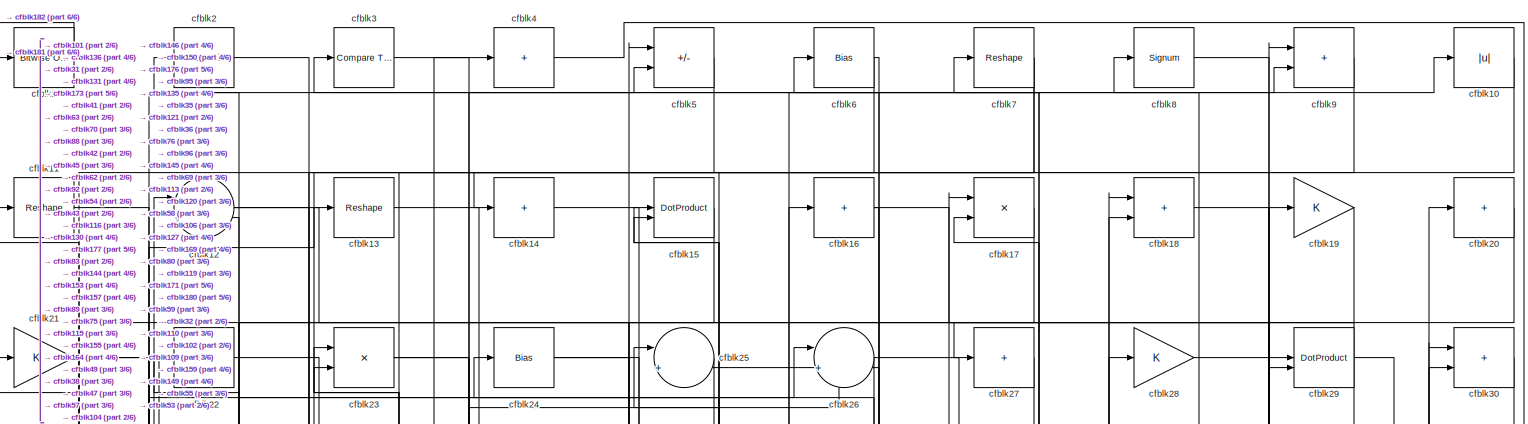
[diagram: root canvas - part 1/6, full width, top band]
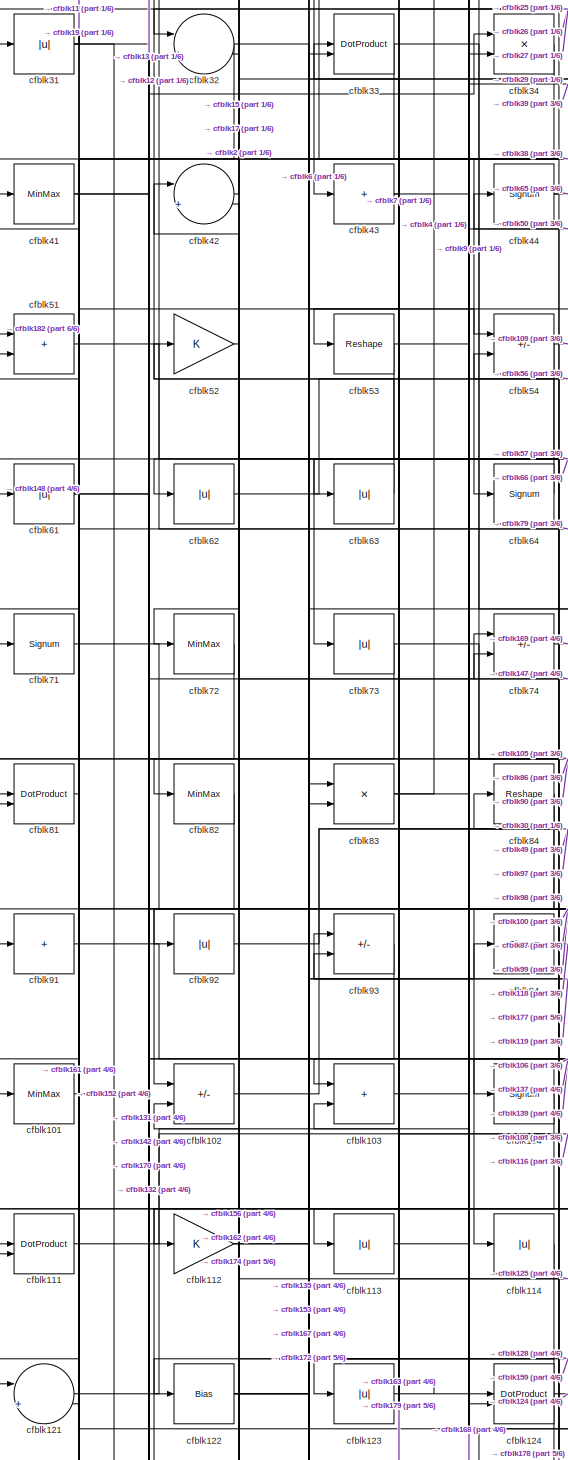
[diagram: root canvas - part 2/6, middle left region]
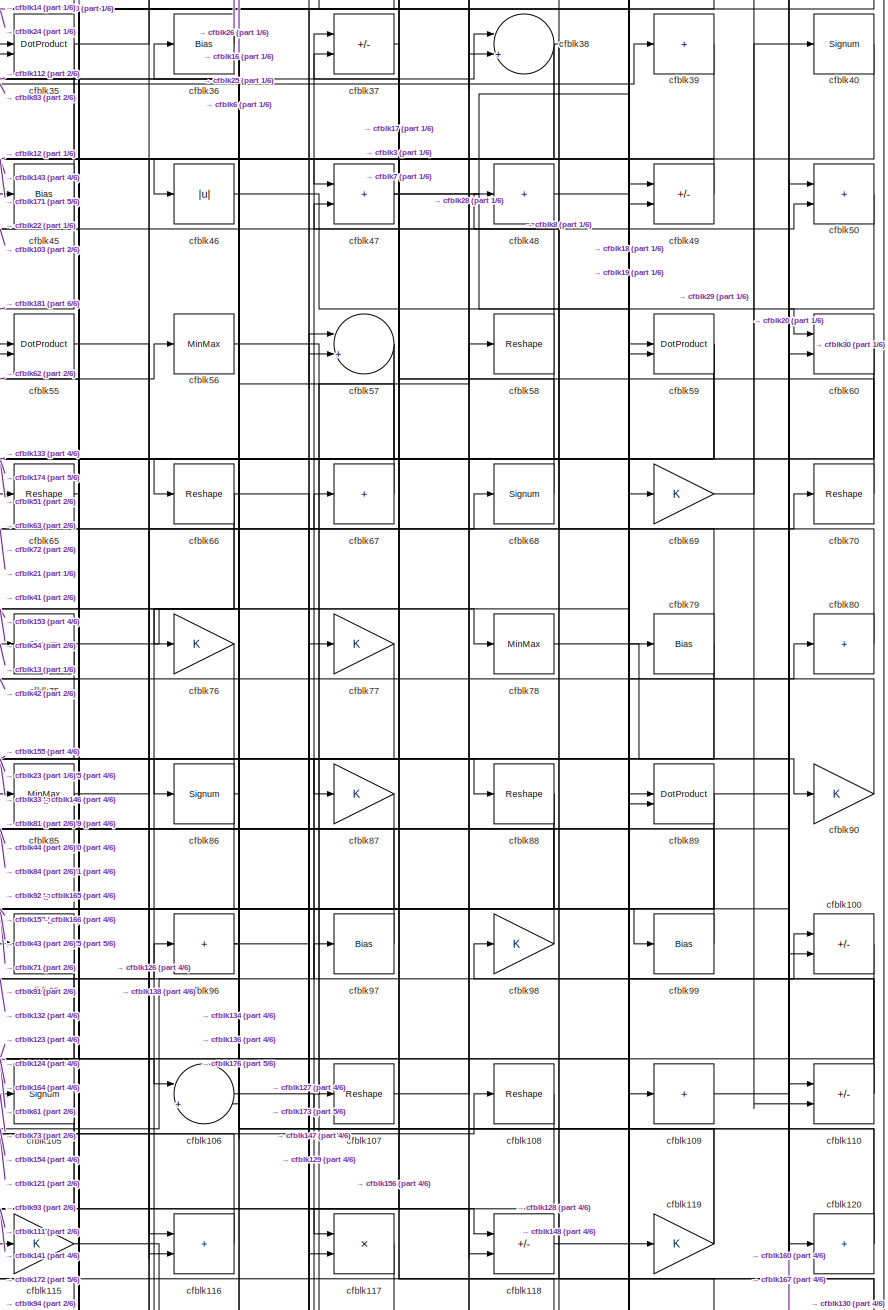
[diagram: root canvas - part 3/6, middle right region]
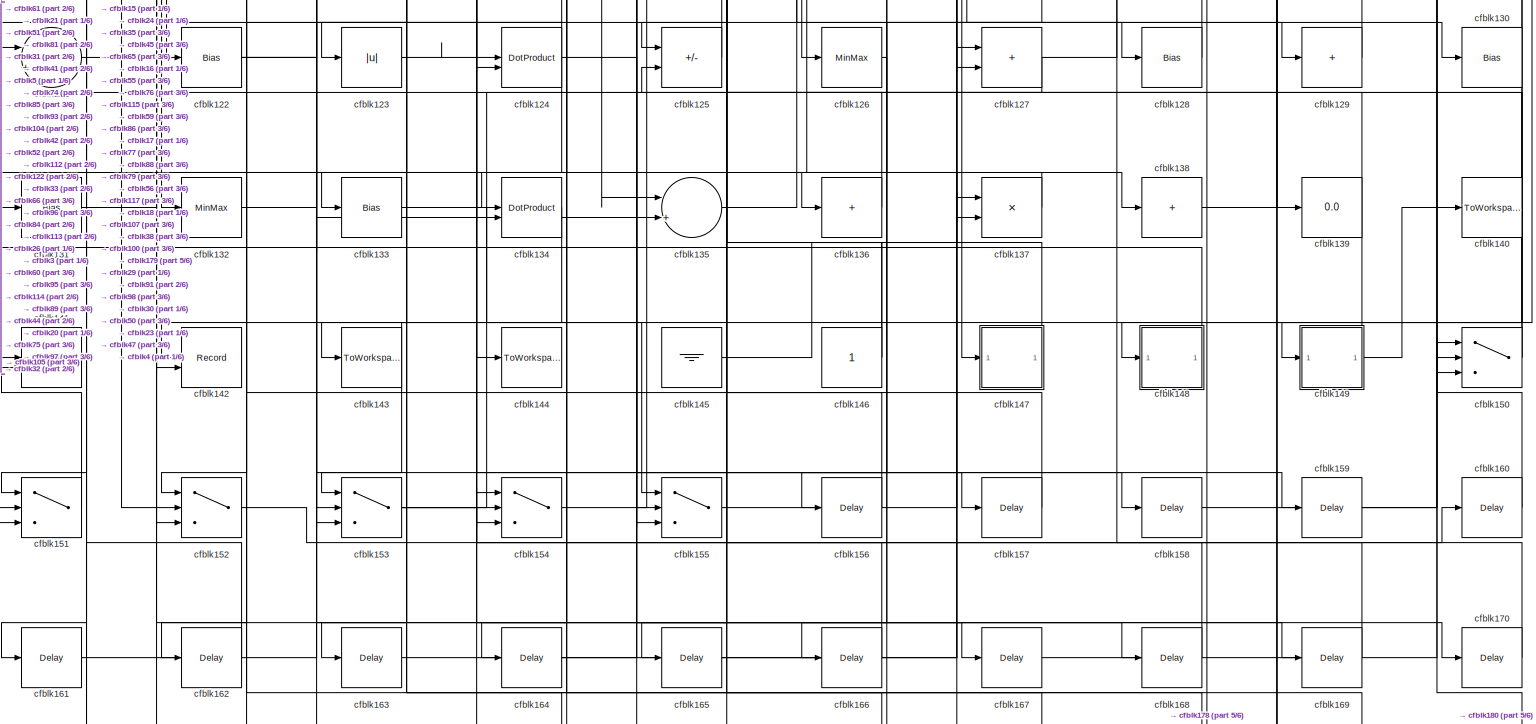
[diagram: root canvas - part 4/6, full width, bottom band]
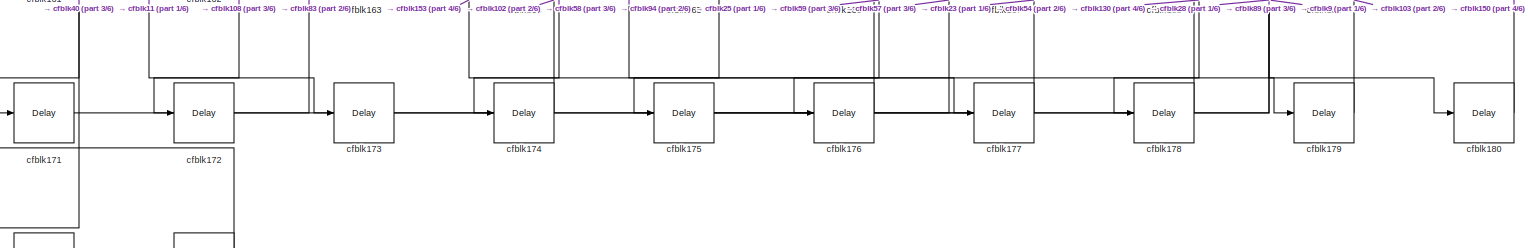
[diagram: root canvas - part 5/6, full width, bottom band]
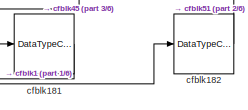
[diagram: root canvas - part 6/6, bottom left region]
MODEL slx_ebef8ea90718
KIND model
CONFIG AbsTol = auto
CONFIG EnableMultiTasking = off
CONFIG FixedStep = auto
CONFIG MaxStep = auto
CONFIG MinStep = auto
CONFIG RelTol = 1e-3
CONFIG SampleTimeConstraint = Unconstrained
CONFIG SolverName = VariableStepAuto
CONFIG StartTime = 0.0
CONFIG StopTime = 10.0
BLOCK [Reference] cfblk1  REF=simulink/Logic and Bit
Operations/Bitwise
Operator
  LibrarySourceBlock = hdlsllib/Logic and Bit\nOperations/Bitwise\nOperator
  SourceBlock = simulink/Logic and Bit\nOperations/Bitwise\nOperator
  SourceType = Bitwise Operator
BLOCK [Abs] cfblk10
  SaturateOnIntegerOverflow = off
BLOCK [Sum] cfblk100
  IconShape = rectangular
  Inputs = +-
BLOCK [MinMax] cfblk101
BLOCK [Sum] cfblk102
  IconShape = rectangular
  Inputs = +-
BLOCK [Sum] cfblk103
  IconShape = rectangular
BLOCK [Signum] cfblk104
BLOCK [Signum] cfblk105
BLOCK [Sum] cfblk106
  Inputs = |++
BLOCK [Reshape] cfblk107
BLOCK [Reshape] cfblk108
BLOCK [Sum] cfblk109
  IconShape = rectangular
  Inputs = +
BLOCK [Reshape] cfblk11
BLOCK [Sum] cfblk110
  IconShape = rectangular
  Inputs = +-
BLOCK [DotProduct] cfblk111
  OutDataTypeStr = Inherit: Inherit via internal rule
BLOCK [Gain] cfblk112
BLOCK [Abs] cfblk113
  SaturateOnIntegerOverflow = off
BLOCK [Abs] cfblk114
  SaturateOnIntegerOverflow = off
BLOCK [Gain] cfblk115
BLOCK [Sum] cfblk116
  IconShape = rectangular
BLOCK [Product] cfblk117
  Inputs = */
  RndMeth = Zero
  SaturateOnIntegerOverflow = on
BLOCK [Sum] cfblk118
  IconShape = rectangular
  Inputs = +-
BLOCK [Gain] cfblk119
BLOCK [Sum] cfblk12
  Inputs = |++
BLOCK [Sum] cfblk120
  IconShape = rectangular
  Inputs = +
BLOCK [Sum] cfblk121
  Inputs = |++
BLOCK [Bias] cfblk122
  Bias = 0.0
  SaturateOnIntegerOverflow = off
BLOCK [Abs] cfblk123
  SaturateOnIntegerOverflow = off
BLOCK [DotProduct] cfblk124
  OutDataTypeStr = Inherit: Inherit via internal rule
BLOCK [Sum] cfblk125
  IconShape = rectangular
  Inputs = +-
BLOCK [MinMax] cfblk126
BLOCK [Sum] cfblk127
  IconShape = rectangular
BLOCK [Bias] cfblk128
  Bias = 0.0
  SaturateOnIntegerOverflow = off
BLOCK [Sum] cfblk129
  IconShape = rectangular
  Inputs = +
BLOCK [Reshape] cfblk13
BLOCK [Bias] cfblk130
  Bias = 0.0
  SaturateOnIntegerOverflow = off
BLOCK [Bias] cfblk131
  Bias = 0.0
  SaturateOnIntegerOverflow = off
BLOCK [MinMax] cfblk132
BLOCK [Bias] cfblk133
  Bias = 0.0
  SaturateOnIntegerOverflow = off
BLOCK [DotProduct] cfblk134
  OutDataTypeStr = Inherit: Inherit via internal rule
BLOCK [Sum] cfblk135
  Inputs = |++
BLOCK [Sum] cfblk136
  IconShape = rectangular
  Inputs = +
BLOCK [Product] cfblk137
  Inputs = */
  RndMeth = Zero
  SaturateOnIntegerOverflow = on
BLOCK [Sum] cfblk138
  IconShape = rectangular
  Inputs = +
BLOCK [Display] cfblk139
  Decimation = 1
BLOCK [Sum] cfblk14
  IconShape = rectangular
  Inputs = +
BLOCK [ToWorkspace] cfblk140
  MaxDataPoints = inf
  SampleTime = -1
  SaveFormat = Timeseries
  VariableName = simout
BLOCK [Record] cfblk141
  CompatibilityTag = XY
  FileSettingsInternal = {"entries":[{"content":{"excelSettings":{"content":{},"type":"Streamout.ExcelSettings"}},"type":"Streamout.FileSettingStorage","uuid":""}],"packageUris":["http:\/\/schema.mathworks.com\/mf0\/streamout_blocks\/R2020a"],"version":"1.0"}
  Layout = [1 1]
  SignalsInternal = {"entries":[{"content":{},"type":"RecordBlkView.InputSignals","uuid":""}],"packageUris":["http:\/\/schema.mathworks.com\/mf0\/streamout_blocks\/R2020a"],"version":"1.0"}
  VisualizationBindings = {"xyplotplugin":{"info":[{"series":[{"bindingParametersList":[{"parameter":"X-Axis","signalID":2082,"signalName":"cfblk151"},{"parameter":"Y-Axis","signalID":2086,"signalName":"cfblk105"}],"seriesID":54928}],"subplotID":1}]}}
  st = -1
BLOCK [Record] cfblk142
  CompatibilityTag = XY
  FileSettingsInternal = {"entries":[{"content":{"excelSettings":{"content":{},"type":"Streamout.ExcelSettings"}},"type":"Streamout.FileSettingStorage","uuid":""}],"packageUris":["http:\/\/schema.mathworks.com\/mf0\/streamout_blocks\/R2020a"],"version":"1.0"}
  Layout = [1 1]
  SignalsInternal = {"entries":[{"content":{},"type":"RecordBlkView.InputSignals","uuid":""}],"packageUris":["http:\/\/schema.mathworks.com\/mf0\/streamout_blocks\/R2020a"],"version":"1.0"}
  VisualizationBindings = {"xyplotplugin":{"info":[{"series":[{"bindingParametersList":[{"parameter":"X-Axis","signalID":2090,"signalName":"cfblk134"},{"parameter":"Y-Axis","signalID":2094,"signalName":"cfblk93"}],"seriesID":22479}],"subplotID":1}]}}
  st = -1
BLOCK [ToWorkspace] cfblk143
  MaxDataPoints = inf
  SampleTime = -1
  SaveFormat = Timeseries
  VariableName = simout
BLOCK [ToWorkspace] cfblk144
  MaxDataPoints = inf
  SampleTime = -1
  SaveFormat = Timeseries
  VariableName = simout
BLOCK [Ground] cfblk145
BLOCK [Constant] cfblk146
  SampleTime = -1
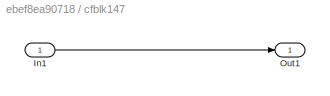
BLOCK [SubSystem] cfblk147
  LibrarySourceBlock = hdlsllib/Ports &\nSubsystems/Subsystem
BLOCK [Inport] cfblk147/In1
BLOCK [Outport] cfblk147/Out1
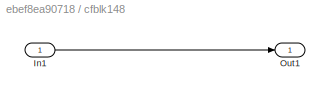
BLOCK [SubSystem] cfblk148
  LibrarySourceBlock = hdlsllib/Ports &\nSubsystems/Subsystem
BLOCK [Inport] cfblk148/In1
BLOCK [Outport] cfblk148/Out1
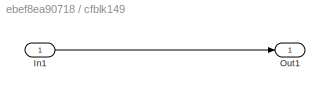
BLOCK [SubSystem] cfblk149
  LibrarySourceBlock = hdlsllib/Ports &\nSubsystems/Subsystem
BLOCK [Inport] cfblk149/In1
BLOCK [Outport] cfblk149/Out1
BLOCK [DotProduct] cfblk15
  OutDataTypeStr = Inherit: Inherit via internal rule
BLOCK [Switch] cfblk150
  InputSameDT = off
  SaturateOnIntegerOverflow = off
BLOCK [Switch] cfblk151
  InputSameDT = off
  SaturateOnIntegerOverflow = off
BLOCK [Switch] cfblk152
  InputSameDT = off
  SaturateOnIntegerOverflow = off
BLOCK [Switch] cfblk153
  InputSameDT = off
  SaturateOnIntegerOverflow = off
BLOCK [Switch] cfblk154
  InputSameDT = off
  SaturateOnIntegerOverflow = off
BLOCK [Switch] cfblk155
  InputSameDT = off
  SaturateOnIntegerOverflow = off
BLOCK [Delay] cfblk156
  InputPortMap = u0
  SampleTime = 1
BLOCK [Delay] cfblk157
  InputPortMap = u0
  SampleTime = 1
BLOCK [Delay] cfblk158
  InputPortMap = u0
  SampleTime = 1
BLOCK [Delay] cfblk159
  InputPortMap = u0
  SampleTime = 1
BLOCK [Sum] cfblk16
  IconShape = rectangular
  Inputs = +
BLOCK [Delay] cfblk160
  InputPortMap = u0
  SampleTime = 1
BLOCK [Delay] cfblk161
  InputPortMap = u0
  SampleTime = 1
BLOCK [Delay] cfblk162
  InputPortMap = u0
  SampleTime = 1
BLOCK [Delay] cfblk163
  InputPortMap = u0
  SampleTime = 1
BLOCK [Delay] cfblk164
  InputPortMap = u0
  SampleTime = 1
BLOCK [Delay] cfblk165
  InputPortMap = u0
  SampleTime = 1
BLOCK [Delay] cfblk166
  InputPortMap = u0
  SampleTime = 1
BLOCK [Delay] cfblk167
  InputPortMap = u0
  SampleTime = 1
BLOCK [Delay] cfblk168
  InputPortMap = u0
  SampleTime = 1
BLOCK [Delay] cfblk169
  InputPortMap = u0
  SampleTime = 1
BLOCK [Product] cfblk17
  Inputs = */
  RndMeth = Zero
  SaturateOnIntegerOverflow = on
BLOCK [Delay] cfblk170
  InputPortMap = u0
  SampleTime = 1
BLOCK [Delay] cfblk171
  InputPortMap = u0
  SampleTime = 1
BLOCK [Delay] cfblk172
  InputPortMap = u0
  SampleTime = 1
BLOCK [Delay] cfblk173
  InputPortMap = u0
  SampleTime = 1
BLOCK [Delay] cfblk174
  InputPortMap = u0
  SampleTime = 1
BLOCK [Delay] cfblk175
  InputPortMap = u0
  SampleTime = 1
BLOCK [Delay] cfblk176
  InputPortMap = u0
  SampleTime = 1
BLOCK [Delay] cfblk177
  InputPortMap = u0
  SampleTime = 1
BLOCK [Delay] cfblk178
  InputPortMap = u0
  SampleTime = 1
BLOCK [Delay] cfblk179
  InputPortMap = u0
  SampleTime = 1
BLOCK [Sum] cfblk18
  IconShape = rectangular
BLOCK [Delay] cfblk180
  InputPortMap = u0
  SampleTime = 1
BLOCK [DataTypeConversion] cfblk181
  OutDataTypeStr = boolean
  RndMeth = Floor
  SaturateOnIntegerOverflow = off
BLOCK [DataTypeConversion] cfblk182
  OutDataTypeStr = uint8
  RndMeth = Floor
  SaturateOnIntegerOverflow = off
BLOCK [Gain] cfblk19
BLOCK [Reference] cfblk2  REF=hdlsllib/Logic and Bit
Operations/Detect Rise
Nonnegative
  SourceBlock = hdlsllib/Logic and Bit\nOperations/Detect Rise\nNonnegative
  SourceType = Detect Rise Nonnegative
BLOCK [Sum] cfblk20
  IconShape = rectangular
  Inputs = +
BLOCK [Gain] cfblk21
BLOCK [Bias] cfblk22
  Bias = 0.0
  SaturateOnIntegerOverflow = off
BLOCK [Product] cfblk23
  Inputs = */
  RndMeth = Zero
  SaturateOnIntegerOverflow = on
BLOCK [Bias] cfblk24
  Bias = 0.0
  SaturateOnIntegerOverflow = off
BLOCK [Sum] cfblk25
  Inputs = |++
BLOCK [Sum] cfblk26
  Inputs = |++
BLOCK [Sum] cfblk27
  IconShape = rectangular
  Inputs = +
BLOCK [Gain] cfblk28
BLOCK [DotProduct] cfblk29
  OutDataTypeStr = Inherit: Inherit via internal rule
BLOCK [Reference] cfblk3  REF=hdlsllib/Logic and Bit
Operations/Compare
To Constant
  SourceBlock = hdlsllib/Logic and Bit\nOperations/Compare\nTo Constant
  SourceType = Compare To Constant
BLOCK [Sum] cfblk30
  IconShape = rectangular
BLOCK [Abs] cfblk31
  SaturateOnIntegerOverflow = off
BLOCK [Sum] cfblk32
  Inputs = |++
BLOCK [DotProduct] cfblk33
  OutDataTypeStr = Inherit: Inherit via internal rule
BLOCK [Product] cfblk34
  Inputs = */
  RndMeth = Zero
  SaturateOnIntegerOverflow = on
BLOCK [DotProduct] cfblk35
  OutDataTypeStr = Inherit: Inherit via internal rule
BLOCK [Bias] cfblk36
  Bias = 0.0
  SaturateOnIntegerOverflow = off
BLOCK [Sum] cfblk37
  IconShape = rectangular
  Inputs = +-
BLOCK [Sum] cfblk38
  Inputs = |++
BLOCK [Sum] cfblk39
  IconShape = rectangular
  Inputs = +
BLOCK [Sum] cfblk4
  IconShape = rectangular
  Inputs = +
BLOCK [Signum] cfblk40
BLOCK [MinMax] cfblk41
BLOCK [Sum] cfblk42
  Inputs = |++
BLOCK [Sum] cfblk43
  IconShape = rectangular
  Inputs = +
BLOCK [Signum] cfblk44
BLOCK [Bias] cfblk45
  Bias = 0.0
  SaturateOnIntegerOverflow = off
BLOCK [Abs] cfblk46
  SaturateOnIntegerOverflow = off
BLOCK [Sum] cfblk47
  IconShape = rectangular
BLOCK [Sum] cfblk48
  IconShape = rectangular
  Inputs = +
BLOCK [Sum] cfblk49
  IconShape = rectangular
  Inputs = +-
BLOCK [Sum] cfblk5
  IconShape = rectangular
  Inputs = +-
BLOCK [Sum] cfblk50
  IconShape = rectangular
BLOCK [Sum] cfblk51
  IconShape = rectangular
BLOCK [Gain] cfblk52
BLOCK [Reshape] cfblk53
BLOCK [Sum] cfblk54
  IconShape = rectangular
  Inputs = +-
BLOCK [DotProduct] cfblk55
  OutDataTypeStr = Inherit: Inherit via internal rule
BLOCK [MinMax] cfblk56
BLOCK [Sum] cfblk57
  Inputs = |++
BLOCK [Reshape] cfblk58
BLOCK [DotProduct] cfblk59
  OutDataTypeStr = Inherit: Inherit via internal rule
BLOCK [Bias] cfblk6
  Bias = 0.0
  SaturateOnIntegerOverflow = off
BLOCK [Sum] cfblk60
  IconShape = rectangular
  Inputs = +-
BLOCK [Abs] cfblk61
  SaturateOnIntegerOverflow = off
BLOCK [Abs] cfblk62
  SaturateOnIntegerOverflow = off
BLOCK [Abs] cfblk63
  SaturateOnIntegerOverflow = off
BLOCK [Signum] cfblk64
BLOCK [Reshape] cfblk65
BLOCK [Reshape] cfblk66
BLOCK [Sum] cfblk67
  IconShape = rectangular
  Inputs = +
BLOCK [Signum] cfblk68
BLOCK [Gain] cfblk69
BLOCK [Reshape] cfblk7
BLOCK [Reshape] cfblk70
BLOCK [Signum] cfblk71
BLOCK [MinMax] cfblk72
BLOCK [Abs] cfblk73
  SaturateOnIntegerOverflow = off
BLOCK [Sum] cfblk74
  IconShape = rectangular
  Inputs = +-
BLOCK [Signum] cfblk75
BLOCK [Gain] cfblk76
BLOCK [Gain] cfblk77
BLOCK [MinMax] cfblk78
BLOCK [Bias] cfblk79
  Bias = 0.0
  SaturateOnIntegerOverflow = off
BLOCK [Signum] cfblk8
BLOCK [Sum] cfblk80
  IconShape = rectangular
  Inputs = +
BLOCK [DotProduct] cfblk81
  OutDataTypeStr = Inherit: Inherit via internal rule
BLOCK [MinMax] cfblk82
BLOCK [Product] cfblk83
  Inputs = */
  RndMeth = Zero
  SaturateOnIntegerOverflow = on
BLOCK [Reshape] cfblk84
BLOCK [MinMax] cfblk85
BLOCK [Signum] cfblk86
BLOCK [Gain] cfblk87
BLOCK [Reshape] cfblk88
BLOCK [DotProduct] cfblk89
  OutDataTypeStr = Inherit: Inherit via internal rule
BLOCK [Sum] cfblk9
  IconShape = rectangular
BLOCK [Gain] cfblk90
BLOCK [Sum] cfblk91
  IconShape = rectangular
  Inputs = +
BLOCK [Abs] cfblk92
  SaturateOnIntegerOverflow = off
BLOCK [Sum] cfblk93
  IconShape = rectangular
  Inputs = +-
BLOCK [Signum] cfblk94
BLOCK [MinMax] cfblk95
BLOCK [Sum] cfblk96
  IconShape = rectangular
  Inputs = +
BLOCK [Bias] cfblk97
  Bias = 0.0
  SaturateOnIntegerOverflow = off
BLOCK [Gain] cfblk98
BLOCK [Bias] cfblk99
  Bias = 0.0
  SaturateOnIntegerOverflow = off
LINE cfblk100:1 -> cfblk164:1
LINE cfblk101:1 -> cfblk34:1
LINE cfblk102:1 -> cfblk30:1
LINE cfblk103:1 -> cfblk50:2
LINE cfblk104:1 -> cfblk132:1
NET cfblk105:1 -> cfblk111:1, cfblk141:2
LINE cfblk106:1 -> cfblk28:1
LINE cfblk107:1 -> cfblk58:1
LINE cfblk108:1 -> cfblk172:1
LINE cfblk109:1 -> cfblk20:1
LINE cfblk10:1 -> cfblk95:1
NET cfblk110:1 -> cfblk37:2, cfblk48:1
LINE cfblk111:1 -> cfblk34:2
NET cfblk112:1 -> cfblk135:2, cfblk38:1
LINE cfblk113:1 -> cfblk168:1
LINE cfblk114:1 -> cfblk162:1
LINE cfblk115:1 -> cfblk138:1
LINE cfblk116:1 -> cfblk93:1
LINE cfblk117:1 -> cfblk156:1
LINE cfblk118:1 -> cfblk80:1
NET cfblk119:1 -> cfblk25:2, cfblk93:2
LINE cfblk11:1 -> cfblk173:1
NET cfblk120:1 -> cfblk17:2, cfblk35:1
LINE cfblk121:1 -> cfblk108:1
NET cfblk122:1 -> cfblk128:1, cfblk159:1, cfblk94:1
LINE cfblk123:1 -> cfblk124:1
NET cfblk124:1 -> cfblk122:1, cfblk151:3, cfblk158:1
LINE cfblk125:1 -> cfblk32:2
LINE cfblk126:1 -> cfblk166:1
NET cfblk127:1 -> cfblk125:2, cfblk18:2
LINE cfblk128:1 -> cfblk107:1
LINE cfblk129:1 -> cfblk98:1
NET cfblk12:1 -> cfblk115:1, cfblk49:2
NET cfblk130:1 -> cfblk153:1, cfblk178:1, cfblk23:1, cfblk47:2
NET cfblk131:1 -> cfblk5:2, cfblk74:2
LINE cfblk132:1 -> cfblk96:1
LINE cfblk133:1 -> cfblk155:1
LINE cfblk134:1 -> cfblk142:1
LINE cfblk135:1 -> cfblk16:1
LINE cfblk136:1 -> cfblk21:1
LINE cfblk137:1 -> cfblk131:1
LINE cfblk138:1 -> cfblk100:1
LINE cfblk13:1 -> cfblk75:1
LINE cfblk145:1 -> cfblk17:1
NET cfblk146:1 -> cfblk24:1, cfblk45:1
LINE cfblk147/In1:1 -> cfblk147/Out1:1
LINE cfblk147:1 -> cfblk74:1
LINE cfblk148/In1:1 -> cfblk148/Out1:1
LINE cfblk148:1 -> cfblk61:1
LINE cfblk149/In1:1 -> cfblk149/Out1:1
NET cfblk149:1 -> cfblk140:1, cfblk85:1
LINE cfblk14:1 -> cfblk57:2
NET cfblk150:1 -> cfblk15:1, cfblk35:2
LINE cfblk151:1 -> cfblk141:1
LINE cfblk152:1 -> cfblk160:1
NET cfblk153:1 -> cfblk179:1, cfblk26:2, cfblk29:1
LINE cfblk154:1 -> cfblk97:1
LINE cfblk155:1 -> cfblk77:1
LINE cfblk156:1 -> cfblk42:2
LINE cfblk157:1 -> cfblk15:2
LINE cfblk158:1 -> cfblk150:2
LINE cfblk159:1 -> cfblk30:2
LINE cfblk15:1 -> cfblk62:1
LINE cfblk160:1 -> cfblk50:1
LINE cfblk161:1 -> cfblk33:2
LINE cfblk162:1 -> cfblk51:2
LINE cfblk163:1 -> cfblk127:1
LINE cfblk164:1 -> cfblk5:1
LINE cfblk165:1 -> cfblk137:1
LINE cfblk166:1 -> cfblk55:2
LINE cfblk167:1 -> cfblk60:2
LINE cfblk168:1 -> cfblk154:2
LINE cfblk169:1 -> cfblk18:1
NET cfblk16:1 -> cfblk29:2, cfblk76:1
LINE cfblk170:1 -> cfblk154:1
LINE cfblk171:1 -> cfblk9:1
LINE cfblk172:1 -> cfblk83:1
LINE cfblk173:1 -> cfblk57:1
LINE cfblk174:1 -> cfblk102:2
LINE cfblk175:1 -> cfblk89:1
LINE cfblk176:1 -> cfblk25:1
LINE cfblk177:1 -> cfblk23:2
LINE cfblk178:1 -> cfblk54:2
LINE cfblk179:1 -> cfblk103:2
LINE cfblk17:1 -> cfblk92:1
LINE cfblk180:1 -> cfblk150:1
LINE cfblk181:1 -> cfblk1:1
LINE cfblk182:1 -> cfblk51:1
LINE cfblk18:1 -> cfblk119:1
LINE cfblk19:1 -> cfblk101:1
LINE cfblk1:1 -> cfblk182:1
LINE cfblk20:1 -> cfblk155:2
NET cfblk21:1 -> cfblk70:1, cfblk88:1
LINE cfblk22:1 -> cfblk116:1
NET cfblk23:1 -> cfblk157:1, cfblk89:2
NET cfblk24:1 -> cfblk38:2, cfblk47:1
LINE cfblk25:1 -> cfblk104:1
NET cfblk26:1 -> cfblk121:2, cfblk69:1
LINE cfblk27:1 -> cfblk113:1
LINE cfblk28:1 -> cfblk180:1
NET cfblk29:1 -> cfblk110:2, cfblk27:1, cfblk32:1
LINE cfblk2:1 -> cfblk54:1
LINE cfblk30:1 -> cfblk55:1
NET cfblk31:1 -> cfblk11:1, cfblk13:1, cfblk152:2
NET cfblk32:1 -> cfblk111:2, cfblk167:1
NET cfblk33:1 -> cfblk153:2, cfblk90:1
LINE cfblk34:1 -> cfblk64:1
NET cfblk35:1 -> cfblk10:1, cfblk143:1
LINE cfblk36:1 -> cfblk12:2
LINE cfblk37:1 -> cfblk87:1
NET cfblk38:1 -> cfblk117:1, cfblk121:1, cfblk148:1
LINE cfblk39:1 -> cfblk71:1
LINE cfblk3:1 -> cfblk144:1
LINE cfblk40:1 -> cfblk171:1
NET cfblk41:1 -> cfblk170:1, cfblk26:1
LINE cfblk42:1 -> cfblk2:1
NET cfblk43:1 -> cfblk100:2, cfblk103:1
NET cfblk44:1 -> cfblk135:1, cfblk65:1
NET cfblk45:1 -> cfblk181:1, cfblk22:1
LINE cfblk46:1 -> cfblk60:1
NET cfblk47:1 -> cfblk19:1, cfblk59:2
LINE cfblk48:1 -> cfblk79:1
LINE cfblk49:1 -> cfblk46:1
LINE cfblk4:1 -> cfblk149:1
LINE cfblk50:1 -> cfblk150:3
LINE cfblk51:1 -> cfblk66:1
LINE cfblk52:1 -> cfblk152:1
NET cfblk53:1 -> cfblk73:1, cfblk9:2
NET cfblk54:1 -> cfblk109:1, cfblk112:1
LINE cfblk55:1 -> cfblk130:1
LINE cfblk56:1 -> cfblk129:1
NET cfblk57:1 -> cfblk63:1, cfblk72:1
NET cfblk58:1 -> cfblk174:1, cfblk7:1
NET cfblk59:1 -> cfblk151:2, cfblk175:1, cfblk176:1
LINE cfblk5:1 -> cfblk14:1
NET cfblk60:1 -> cfblk133:1, cfblk154:3
NET cfblk61:1 -> cfblk106:1, cfblk137:2
LINE cfblk62:1 -> cfblk56:1
LINE cfblk63:1 -> cfblk12:1
LINE cfblk64:1 -> cfblk52:1
LINE cfblk65:1 -> cfblk165:1
NET cfblk66:1 -> cfblk118:2, cfblk153:3, cfblk86:1
LINE cfblk67:1 -> cfblk36:1
LINE cfblk68:1 -> cfblk37:1
LINE cfblk69:1 -> cfblk40:1
NET cfblk6:1 -> cfblk106:2, cfblk43:1
LINE cfblk70:1 -> cfblk3:1
LINE cfblk71:1 -> cfblk99:1
LINE cfblk72:1 -> cfblk82:1
NET cfblk73:1 -> cfblk105:1, cfblk81:2
LINE cfblk74:1 -> cfblk169:1
NET cfblk75:1 -> cfblk155:3, cfblk78:1
LINE cfblk76:1 -> cfblk126:1
LINE cfblk77:1 -> cfblk117:2
LINE cfblk78:1 -> cfblk110:1
NET cfblk79:1 -> cfblk125:1, cfblk147:1, cfblk41:1
NET cfblk7:1 -> cfblk31:1, cfblk53:1
LINE cfblk80:1 -> cfblk8:1
LINE cfblk81:1 -> cfblk161:1
LINE cfblk82:1 -> cfblk102:1
NET cfblk83:1 -> cfblk39:1, cfblk4:1
NET cfblk84:1 -> cfblk114:1, cfblk163:1
NET cfblk85:1 -> cfblk152:3, cfblk67:1
NET cfblk86:1 -> cfblk134:2, cfblk136:1, cfblk81:1
LINE cfblk87:1 -> cfblk91:1
NET cfblk88:1 -> cfblk116:2, cfblk127:2
NET cfblk89:1 -> cfblk120:1, cfblk134:1, cfblk151:1
LINE cfblk8:1 -> cfblk59:1
LINE cfblk90:1 -> cfblk42:1
LINE cfblk91:1 -> cfblk139:1
LINE cfblk92:1 -> cfblk49:1
LINE cfblk93:1 -> cfblk142:2
NET cfblk94:1 -> cfblk118:1, cfblk177:1
NET cfblk95:1 -> cfblk123:1, cfblk124:2
NET cfblk96:1 -> cfblk68:1, cfblk6:1
LINE cfblk97:1 -> cfblk44:1
LINE cfblk98:1 -> cfblk33:1
LINE cfblk99:1 -> cfblk84:1
LINE cfblk9:1 -> cfblk83:2
note: NET lines group one-source signal fan-out (src -> all destinations, sorted); 1:1 wires keep LINE
